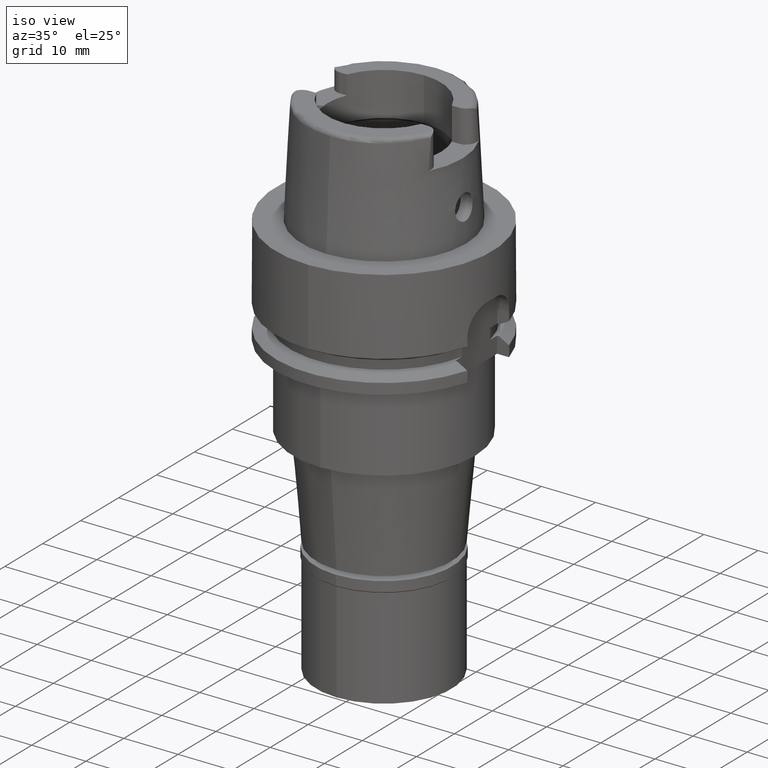
[diagram: clean part render]
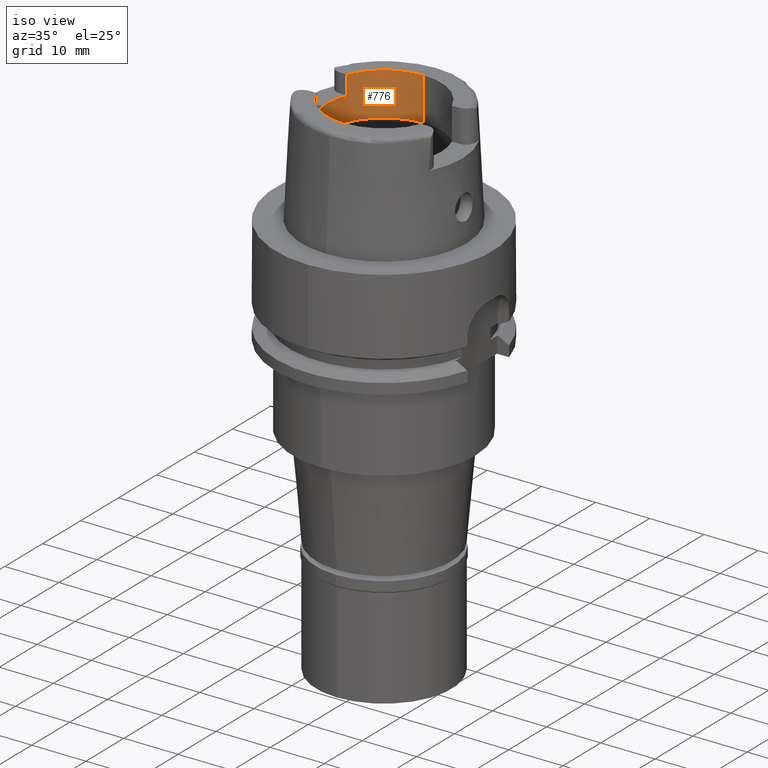
[diagram: same view with one face highlighted and labeled with its STEP entity id]
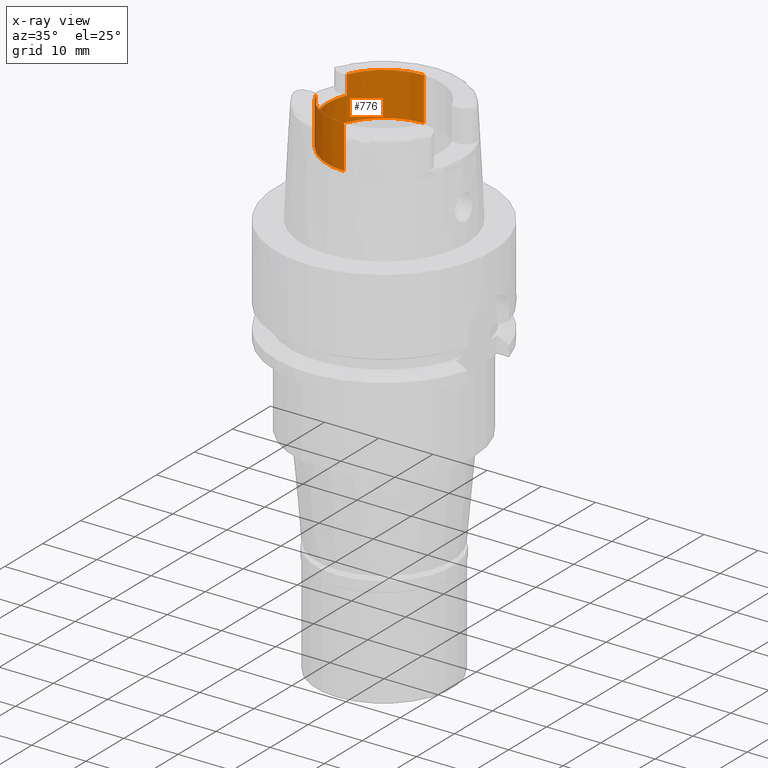
[diagram: x-ray of the same camera — body ghosted, the highlighted face saturated]
A machine part, iso view. The second image highlights one B-rep face of the part: STEP entity #776.
The next image is the same camera in x-ray: the body ghosted, the highlighted face saturated — about 0% of this face is hidden behind the body in this view.
In plain terms, the highlighted cylindrical surface (partial cylindrical patch) has radius 10.5 mm, axis along (0, 0, -1).
Its self-contained STEP definition (entity closure, byte-faithful):
#30 = CARTESIAN_POINT ( 'NONE',  ( 0.0000000000000000000, 10.50000000000000000, 11.99735026918999914 ) ) ;
#79 = VERTEX_POINT ( 'NONE', #4759 ) ;
#171 = VERTEX_POINT ( 'NONE', #4789 ) ;
#240 = EDGE_CURVE ( 'NONE', #1774, #4806, #2344, .T. ) ;
#295 = CARTESIAN_POINT ( 'NONE',  ( 0.0000000000000000000, 1.363617650911000050E-14, 11.99735026918999914 ) ) ;
#351 = EDGE_CURVE ( 'NONE', #79, #2757, #788, .T. ) ;
#472 = ORIENTED_EDGE ( 'NONE', *, *, #3103, .F. ) ;
#672 = VERTEX_POINT ( 'NONE', #30 ) ;
#721 = AXIS2_PLACEMENT_3D ( 'NONE', #295, #2503, #4190 ) ;
#763 = CARTESIAN_POINT ( 'NONE',  ( -9.697905701747998819, 4.025000000000000355, 16.50000000000000000 ) ) ;
#776 = ADVANCED_FACE ( 'NONE', ( #2028 ), #3677, .F. ) ;
#778 = VERTEX_POINT ( 'NONE', #4496 ) ;
#788 = LINE ( 'NONE', #2799, #2073 ) ;
#879 = LINE ( 'NONE', #3802, #1891 ) ;
#992 = CIRCLE ( 'NONE', #2313, 10.49999999999999822 ) ;
#1048 = CARTESIAN_POINT ( 'NONE',  ( 0.0000000000000000000, -10.50000000000000000, 20.00000000000000000 ) ) ;
#1126 = DIRECTION ( 'NONE',  ( -0.9236100668331782559, -0.3833333333332911153, 0.0000000000000000000 ) ) ;
#1272 = EDGE_CURVE ( 'NONE', #4724, #4806, #4664, .T. ) ;
#1350 = VECTOR ( 'NONE', #1929, 1000.000000000000000 ) ;
#1608 = DIRECTION ( 'NONE',  ( 0.0000000000000000000, 0.0000000000000000000, -1.000000000000000000 ) ) ;
#1774 = VERTEX_POINT ( 'NONE', #763 ) ;
#1784 = ORIENTED_EDGE ( 'NONE', *, *, #351, .F. ) ;
#1832 = LINE ( 'NONE', #2292, #2732 ) ;
#1891 = VECTOR ( 'NONE', #2129, 1000.000000000000000 ) ;
#1929 = DIRECTION ( 'NONE',  ( 0.0000000000000000000, 0.0000000000000000000, 1.000000000000000000 ) ) ;
#1969 = CARTESIAN_POINT ( 'NONE',  ( 0.0000000000000000000, 1.523950476858999865E-14, 20.00000000000000000 ) ) ;
#2028 = FACE_OUTER_BOUND ( 'NONE', #4661, .T. ) ;
#2073 = VECTOR ( 'NONE', #5184, 1000.000000000000000 ) ;
#2129 = DIRECTION ( 'NONE',  ( 0.0000000000000000000, 4.506013014787999900E-14, 1.000000000000000000 ) ) ;
#2133 = DIRECTION ( 'NONE',  ( -0.9236100668331782559, 0.3833333333332911153, 0.0000000000000000000 ) ) ;
#2204 = CARTESIAN_POINT ( 'NONE',  ( 0.0000000000000000000, 1.523950476858999865E-14, 20.00000000000000000 ) ) ;
#2292 = CARTESIAN_POINT ( 'NONE',  ( -9.697905701747998819, -4.025000000000000355, 20.00000000000000000 ) ) ;
#2313 = AXIS2_PLACEMENT_3D ( 'NONE', #3862, #3410, #2133 ) ;
#2328 = DIRECTION ( 'NONE',  ( 0.0000000000000000000, 0.0000000000000000000, 1.000000000000000000 ) ) ;
#2344 = LINE ( 'NONE', #4017, #1350 ) ;
#2405 = ORIENTED_EDGE ( 'NONE', *, *, #240, .F. ) ;
#2503 = DIRECTION ( 'NONE',  ( 0.0000000000000000000, 0.0000000000000000000, -1.000000000000000000 ) ) ;
#2581 = CARTESIAN_POINT ( 'NONE',  ( -9.697905701747998819, 4.025000000000000355, 20.00000000000000000 ) ) ;
#2633 = ORIENTED_EDGE ( 'NONE', *, *, #4176, .T. ) ;
#2732 = VECTOR ( 'NONE', #3554, 1000.000000000000000 ) ;
#2757 = VERTEX_POINT ( 'NONE', #1048 ) ;
#2799 = CARTESIAN_POINT ( 'NONE',  ( 0.0000000000000000000, -10.50000000000000000, 11.99735026918999914 ) ) ;
#2865 = CARTESIAN_POINT ( 'NONE',  ( 0.0000000000000000000, 1.523950476858999865E-14, 24.44000000000000128 ) ) ;
#3103 = EDGE_CURVE ( 'NONE', #171, #778, #1832, .T. ) ;
#3409 = ORIENTED_EDGE ( 'NONE', *, *, #3876, .T. ) ;
#3410 = DIRECTION ( 'NONE',  ( 0.0000000000000000000, 0.0000000000000000000, 1.000000000000000000 ) ) ;
#3554 = DIRECTION ( 'NONE',  ( 0.0000000000000000000, 0.0000000000000000000, -1.000000000000000000 ) ) ;
#3617 = DIRECTION ( 'NONE',  ( 0.0000000000000000000, -1.000000000000000000, 0.0000000000000000000 ) ) ;
#3677 = CYLINDRICAL_SURFACE ( 'NONE', #4269, 10.50000000000000000 ) ;
#3802 = CARTESIAN_POINT ( 'NONE',  ( 0.0000000000000000000, 10.50000000000000000, 11.99735026918999914 ) ) ;
#3862 = CARTESIAN_POINT ( 'NONE',  ( 0.0000000000000000000, 1.523950476858999865E-14, 16.50000000000000000 ) ) ;
#3876 = EDGE_CURVE ( 'NONE', #171, #2757, #3901, .T. ) ;
#3901 = CIRCLE ( 'NONE', #4511, 10.49999999999999822 ) ;
#4017 = CARTESIAN_POINT ( 'NONE',  ( -9.697905701747998819, 4.025000000000000355, 16.50000000000000000 ) ) ;
#4098 = ORIENTED_EDGE ( 'NONE', *, *, #1272, .T. ) ;
#4176 = EDGE_CURVE ( 'NONE', #672, #4724, #879, .T. ) ;
#4190 = DIRECTION ( 'NONE',  ( 0.0000000000000000000, -1.000000000000000000, 0.0000000000000000000 ) ) ;
#4269 = AXIS2_PLACEMENT_3D ( 'NONE', #2865, #1608, #3617 ) ;
#4298 = DIRECTION ( 'NONE',  ( 0.0000000000000000000, 1.000000000000000000, 0.0000000000000000000 ) ) ;
#4325 = DIRECTION ( 'NONE',  ( 0.0000000000000000000, 0.0000000000000000000, 1.000000000000000000 ) ) ;
#4372 = ORIENTED_EDGE ( 'NONE', *, *, #4557, .T. ) ;
#4496 = CARTESIAN_POINT ( 'NONE',  ( -9.697905701747998819, -4.025000000000000355, 16.50000000000000000 ) ) ;
#4511 = AXIS2_PLACEMENT_3D ( 'NONE', #1969, #2328, #1126 ) ;
#4557 = EDGE_CURVE ( 'NONE', #1774, #778, #992, .T. ) ;
#4661 = EDGE_LOOP ( 'NONE', ( #472, #3409, #1784, #4871, #2633, #4098, #2405, #4372 ) ) ;
#4664 = CIRCLE ( 'NONE', #5369, 10.50000000000000000 ) ;
#4724 = VERTEX_POINT ( 'NONE', #5416 ) ;
#4746 = EDGE_CURVE ( 'NONE', #79, #672, #4861, .T. ) ;
#4759 = CARTESIAN_POINT ( 'NONE',  ( 0.0000000000000000000, -10.50000000000000000, 11.99735026918999914 ) ) ;
#4789 = CARTESIAN_POINT ( 'NONE',  ( -9.697905701747998819, -4.025000000000000355, 20.00000000000000000 ) ) ;
#4806 = VERTEX_POINT ( 'NONE', #2581 ) ;
#4861 = CIRCLE ( 'NONE', #721, 10.50000000000000000 ) ;
#4871 = ORIENTED_EDGE ( 'NONE', *, *, #4746, .T. ) ;
#5184 = DIRECTION ( 'NONE',  ( 0.0000000000000000000, -4.506013014787999900E-14, 1.000000000000000000 ) ) ;
#5369 = AXIS2_PLACEMENT_3D ( 'NONE', #2204, #4325, #4298 ) ;
#5416 = CARTESIAN_POINT ( 'NONE',  ( 0.0000000000000000000, 10.50000000000000000, 20.00000000000000000 ) ) ;